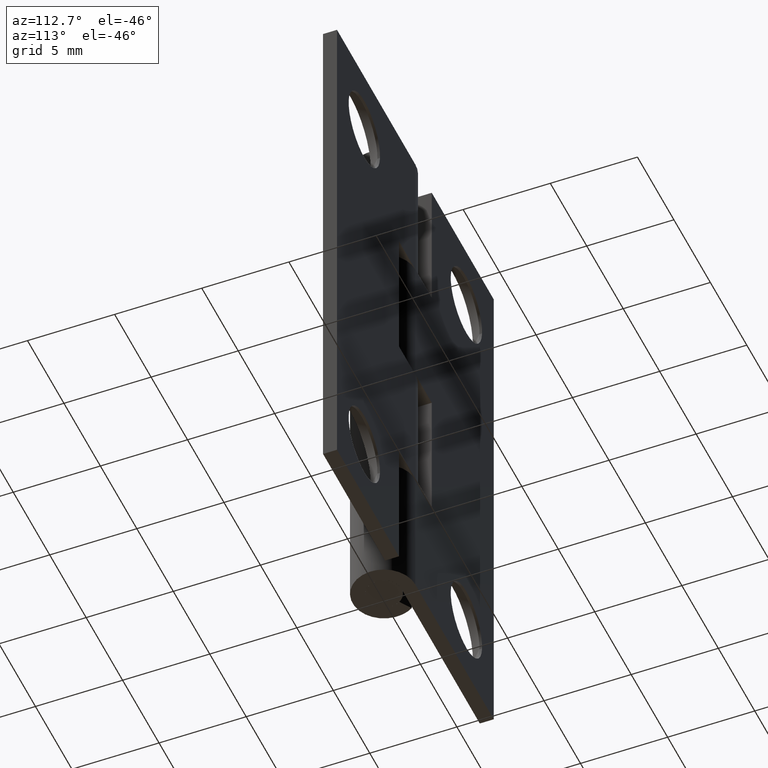
[diagram: clean part render]
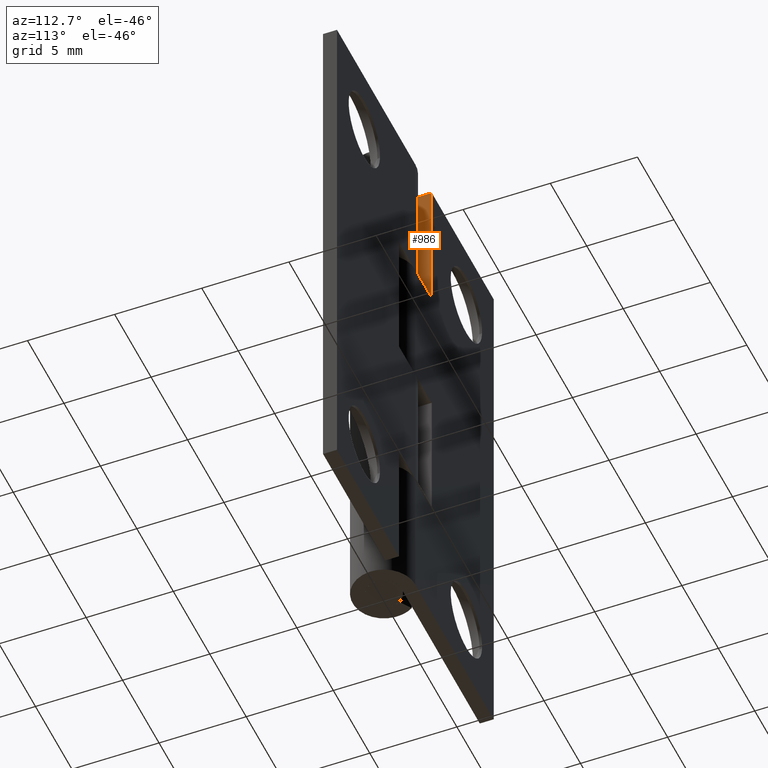
[diagram: same view with one face highlighted and labeled with its STEP entity id]
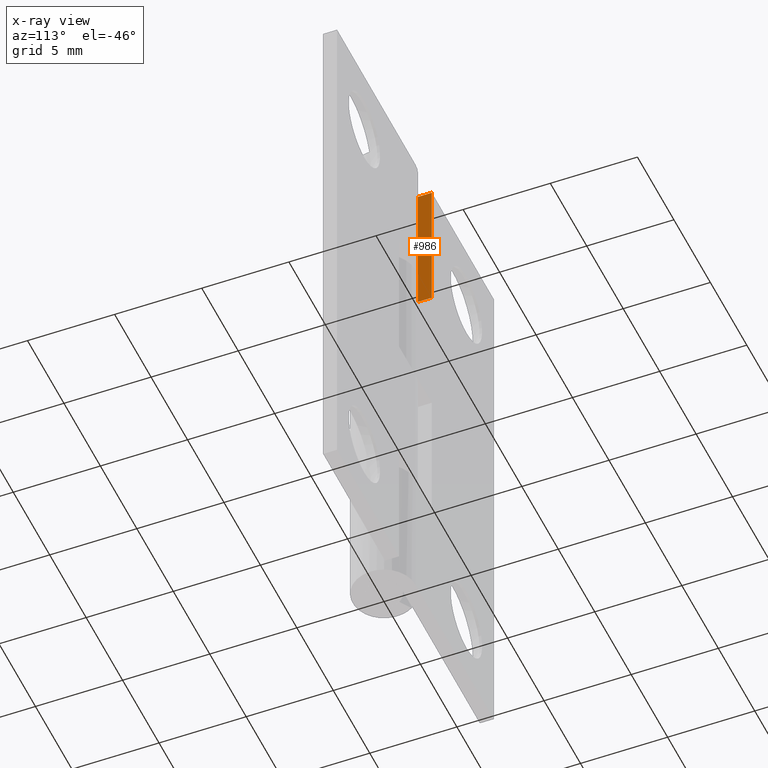
[diagram: x-ray of the same camera — body ghosted, the highlighted face saturated]
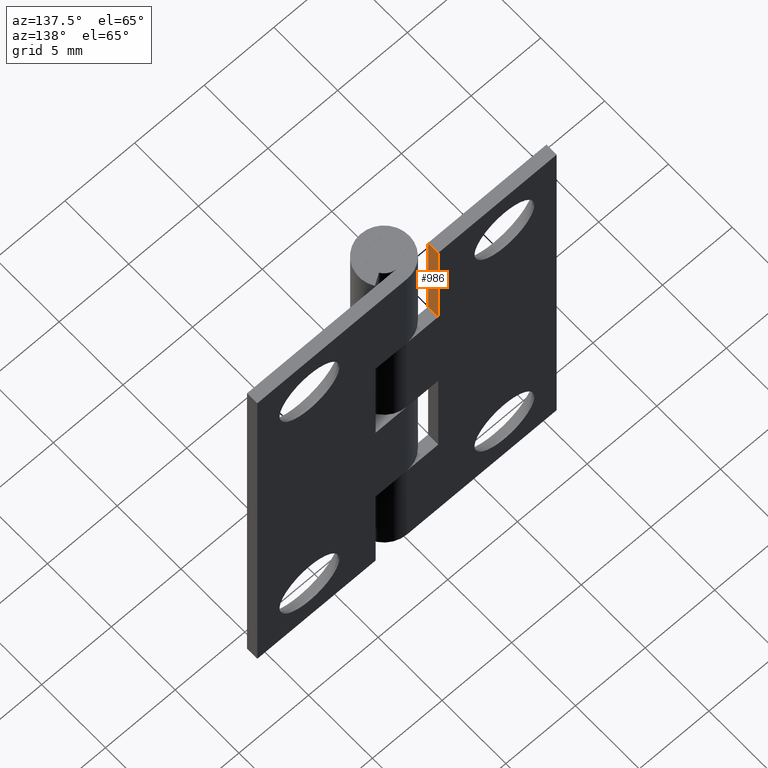
[diagram: same view with one face highlighted and labeled with its STEP entity id]
A machine part, auxiliary view. The second image highlights one B-rep face of the part: STEP entity #986.
The next image is the same camera in x-ray: the body ghosted, the highlighted face saturated — about 0% of this face is hidden behind the body in this view.
A second angle (auxiliary view) of the same face is appended — the face is thin or edge-on in the first view.
In plain terms, the highlighted face is a freeform B-spline surface patch.
Its self-contained STEP definition (entity closure, byte-faithful):
#951=CARTESIAN_POINT('',(-2.250000000000000,0.960040051500553,23.600400015505549));
#952=CARTESIAN_POINT('',(-2.250000000000000,0.960040051500553,32.399600199071173));
#953=CARTESIAN_POINT('',(-2.250000000000000,1.839958969957092,23.600400015505549));
#954=CARTESIAN_POINT('',(-2.250000000000000,1.839958969957092,32.399600199071173));
#955=B_SPLINE_SURFACE_WITH_KNOTS('',1,1,((#951,#953),(#952,#954)),.UNSPECIFIED.,.F.,.F.,.U.,(2,2),(2,2),(0.0,8.799200183565620),(0.041708334948495,0.958291687403247),.UNSPECIFIED.);
#956=CARTESIAN_POINT('',(-2.250000000000000,1.0,32.0));
#957=VERTEX_POINT('',#956);
#958=CARTESIAN_POINT('',(-2.250000000000000,1.0,24.0));
#959=VERTEX_POINT('',#958);
#960=CARTESIAN_POINT('',(-2.250000000000000,1.0,32.0));
#961=CARTESIAN_POINT('',(-2.250000000000000,1.0,24.0));
#962=QUASI_UNIFORM_CURVE('',1,(#960,#961),.UNSPECIFIED.,.F.,.U.);
#963=EDGE_CURVE('',#957,#959,#962,.T.);
#964=ORIENTED_EDGE('',*,*,#963,.T.);
#965=CARTESIAN_POINT('',(-2.250000000000000,1.799998999999940,24.0));
#966=VERTEX_POINT('',#965);
#967=CARTESIAN_POINT('',(-2.250000000000000,1.799998999999940,24.0));
#968=CARTESIAN_POINT('',(-2.250000000000000,1.0,24.0));
#969=QUASI_UNIFORM_CURVE('',1,(#967,#968),.UNSPECIFIED.,.F.,.U.);
#970=EDGE_CURVE('',#966,#959,#969,.T.);
#971=ORIENTED_EDGE('',*,*,#970,.F.);
#972=CARTESIAN_POINT('',(-2.250000000000000,1.799999000000000,32.0));
#973=VERTEX_POINT('',#972);
#974=CARTESIAN_POINT('',(-2.250000000000000,1.799999000000000,32.0));
#975=CARTESIAN_POINT('',(-2.250000000000000,1.799998999999940,24.0));
#976=QUASI_UNIFORM_CURVE('',1,(#974,#975),.UNSPECIFIED.,.F.,.U.);
#977=EDGE_CURVE('',#973,#966,#976,.T.);
#978=ORIENTED_EDGE('',*,*,#977,.F.);
#979=CARTESIAN_POINT('',(-2.250000000000000,1.799999000000000,32.0));
#980=CARTESIAN_POINT('',(-2.250000000000000,1.0,32.0));
#981=QUASI_UNIFORM_CURVE('',1,(#979,#980),.UNSPECIFIED.,.F.,.U.);
#982=EDGE_CURVE('',#973,#957,#981,.T.);
#983=ORIENTED_EDGE('',*,*,#982,.T.);
#984=EDGE_LOOP('',(#964,#971,#978,#983));
#985=FACE_OUTER_BOUND('',#984,.T.);
#986=ADVANCED_FACE('',(#985),#955,.F.);